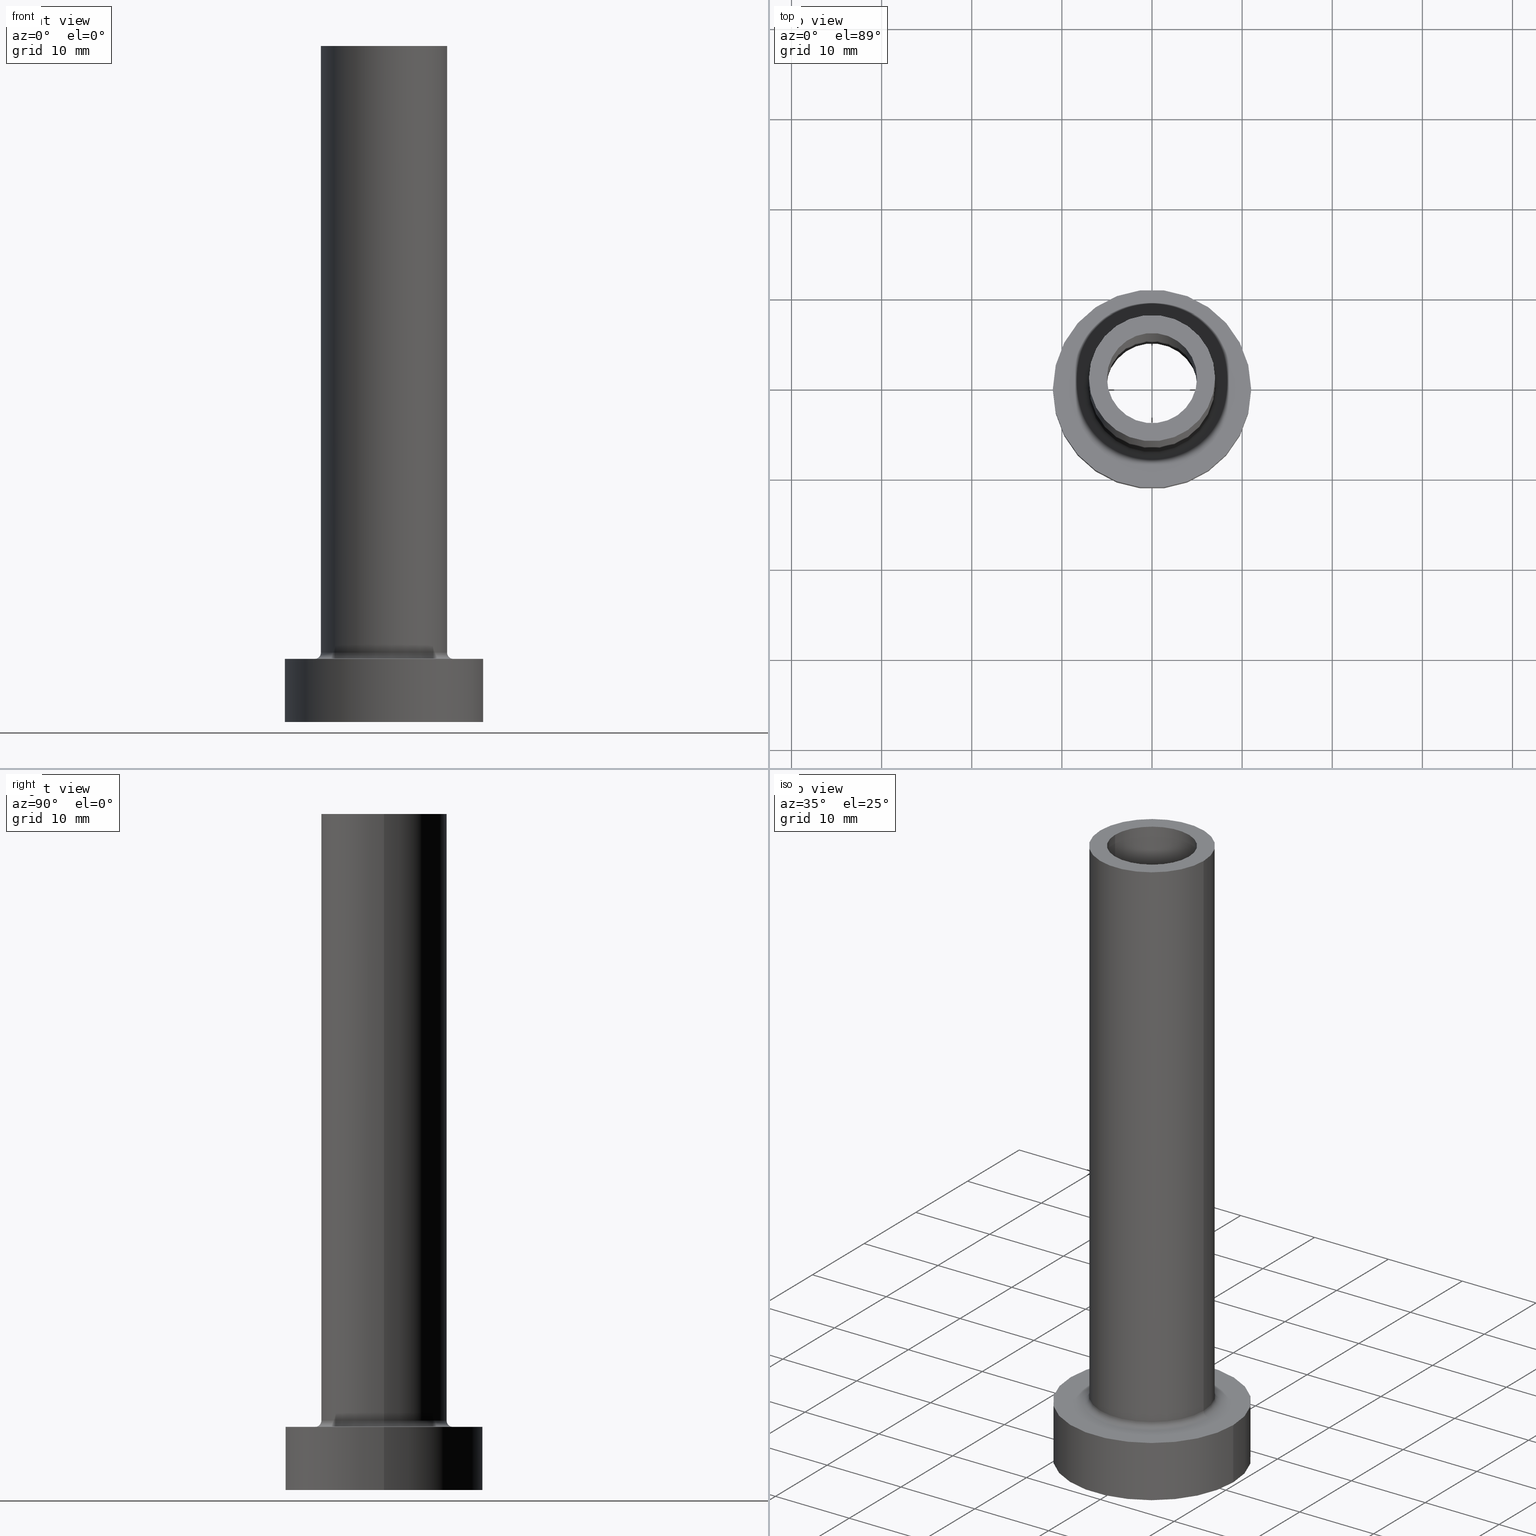
[diagram: canonical four-view strip — front | top / right | iso, engineering-drawing reading convention]
A machine part, canonical four-view strip (front | top / right | iso — engineering-drawing reading convention). The complete STEP part file that produces these views, byte-faithful:
ISO-10303-21;
HEADER;
FILE_DESCRIPTION (( 'STEP AP203' ),
    '1' );
FILE_NAME ('85dc.STEP',
    '2023-02-13T07:45:00',
    ( '' ),
    ( '' ),
    'SwSTEP 2.0',
    'SolidWorks 2019',
    '' );
FILE_SCHEMA (( 'CONFIG_CONTROL_DESIGN' ));
ENDSEC;

DATA;
#1 = PRODUCT_DEFINITION_SHAPE ( 'NONE', 'NONE',  #87 ) ;
#2 = CARTESIAN_POINT ( 'NONE',  ( 7.700000000000001066, 0.000000000000000000, 6.999999999999999112 ) ) ;
#3 = CARTESIAN_POINT ( 'NONE',  ( -7.000000000000000888, 0.000000000000000000, 7.699999999999998401 ) ) ;
#4 = DIRECTION ( 'NONE',  ( -0.000000000000000000, -0.000000000000000000, -1.000000000000000000 ) ) ;
#5 = VECTOR ( 'NONE', #144, 1000.000000000000000 ) ;
#6 =( LENGTH_UNIT ( ) NAMED_UNIT ( * ) SI_UNIT ( .MILLI., .METRE. ) );
#7 = CARTESIAN_POINT ( 'NONE',  ( 0.000000000000000000, 0.000000000000000000, 75.00000000000001421 ) ) ;
#8 = APPLICATION_PROTOCOL_DEFINITION ( 'international standard', 'config_control_design', 1994, #19 ) ;
#9 = CARTESIAN_POINT ( 'NONE',  ( -11.00000000000000000, 0.000000000000000000, 7.000000000000000000 ) ) ;
#10 = EDGE_CURVE ( 'NONE', #274, #378, #61, .T. ) ;
#11 = DATE_AND_TIME ( #194, #30 ) ;
#12 = VECTOR ( 'NONE', #119, 1000.000000000000000 ) ;
#13 = SHAPE_DEFINITION_REPRESENTATION ( #1, #37 ) ;
#14 = PRODUCT_DEFINITION_FORMATION_WITH_SPECIFIED_SOURCE ( 'LIBOVOLN�', '', #80, .NOT_KNOWN. ) ;
#15 = ADVANCED_FACE ( 'NONE', ( #437 ), #322, .F. ) ;
#16 = SECURITY_CLASSIFICATION_LEVEL ( 'unclassified' ) ;
#17 = CALENDAR_DATE ( 2023, 13, 2 ) ;
#18 = ORIENTED_EDGE ( 'NONE', *, *, #54, .F. ) ;
#19 = APPLICATION_CONTEXT ( 'configuration controlled 3d designs of mechanical parts and assemblies' ) ;
#20 = AXIS2_PLACEMENT_3D ( 'NONE', #115, #367, #183 ) ;
#21 = EDGE_LOOP ( 'NONE', ( #345, #140, #98, #282 ) ) ;
#22 = PLANE ( 'NONE',  #225 ) ;
#23 = EDGE_CURVE ( 'NONE', #390, #170, #29, .T. ) ;
#24 = VERTEX_POINT ( 'NONE', #81 ) ;
#25 = DIRECTION ( 'NONE',  ( 0.000000000000000000, 0.000000000000000000, -1.000000000000000000 ) ) ;
#26 = VERTEX_POINT ( 'NONE', #121 ) ;
#27 = ORIENTED_EDGE ( 'NONE', *, *, #160, .F. ) ;
#28 = FACE_BOUND ( 'NONE', #328, .T. ) ;
#29 = CIRCLE ( 'NONE', #290, 11.00000000000000000 ) ;
#30 = LOCAL_TIME ( 8, 45, 0.000000000000000000, #334 ) ;
#31 = CARTESIAN_POINT ( 'NONE',  ( 0.000000000000000000, 0.000000000000000000, 7.000000000000000000 ) ) ;
#32 = ORIENTED_EDGE ( 'NONE', *, *, #278, .F. ) ;
#33 = EDGE_CURVE ( 'NONE', #410, #381, #266, .T. ) ;
#34 = ORIENTED_EDGE ( 'NONE', *, *, #406, .F. ) ;
#35 = CARTESIAN_POINT ( 'NONE',  ( 0.000000000000000000, 0.000000000000000000, 7.000000000000000000 ) ) ;
#36 = DIRECTION ( 'NONE',  ( 1.000000000000000000, 0.000000000000000000, 0.000000000000000000 ) ) ;
#37 = ADVANCED_BREP_SHAPE_REPRESENTATION ( '85dc', ( #253, #257 ), #332 ) ;
#38 = DIRECTION ( 'NONE',  ( -0.000000000000000000, -0.000000000000000000, -1.000000000000000000 ) ) ;
#39 = CARTESIAN_POINT ( 'NONE',  ( -5.150000000000001243, 0.000000000000000000, 0.000000000000000000 ) ) ;
#40 = PLANE ( 'NONE',  #444 ) ;
#41 = DIRECTION ( 'NONE',  ( 0.000000000000000000, -1.000000000000000000, 0.000000000000000000 ) ) ;
#42 = AXIS2_PLACEMENT_3D ( 'NONE', #75, #293, #281 ) ;
#43 = CIRCLE ( 'NONE', #426, 7.000000000000000888 ) ;
#44 = CARTESIAN_POINT ( 'NONE',  ( 5.150000000000001243, 6.306931015608869596E-16, 44.56639969244290000 ) ) ;
#45 = ADVANCED_FACE ( 'NONE', ( #358, #384 ), #71, .T. ) ;
#46 = DIRECTION ( 'NONE',  ( 0.000000000000000000, 0.000000000000000000, 1.000000000000000000 ) ) ;
#47 = AXIS2_PLACEMENT_3D ( 'NONE', #352, #429, #114 ) ;
#48 = CC_DESIGN_PERSON_AND_ORGANIZATION_ASSIGNMENT ( #156, #263, ( #87 ) ) ;
#49 = LOCAL_TIME ( 8, 45, 0.000000000000000000, #229 ) ;
#50 = COORDINATED_UNIVERSAL_TIME_OFFSET ( 1, 0, .AHEAD. ) ;
#51 = CARTESIAN_POINT ( 'NONE',  ( -7.000000000000000888, 0.000000000000000000, 75.00000000000001421 ) ) ;
#52 = DATE_AND_TIME ( #120, #284 ) ;
#53 = PERSON_AND_ORGANIZATION ( #158, #389 ) ;
#54 = EDGE_CURVE ( 'NONE', #390, #24, #260, .T. ) ;
#55 = VECTOR ( 'NONE', #202, 1000.000000000000000 ) ;
#56 = PERSON_AND_ORGANIZATION_ROLE ( 'design_owner' ) ;
#57 = SECURITY_CLASSIFICATION ( '', '', #16 ) ;
#58 = EDGE_LOOP ( 'NONE', ( #270, #422, #65, #300 ) ) ;
#59 = ORIENTED_EDGE ( 'NONE', *, *, #118, .F. ) ;
#60 = APPROVAL ( #302, 'NEUR�EN�' ) ;
#61 = CIRCLE ( 'NONE', #148, 5.000000000000000000 ) ;
#62 = DIRECTION ( 'NONE',  ( -1.000000000000000000, 0.000000000000000000, 0.000000000000000000 ) ) ;
#63 = AXIS2_PLACEMENT_3D ( 'NONE', #86, #394, #255 ) ;
#64 = VERTEX_POINT ( 'NONE', #39 ) ;
#65 = ORIENTED_EDGE ( 'NONE', *, *, #348, .T. ) ;
#66 = DIRECTION ( 'NONE',  ( -1.000000000000000000, 0.000000000000000000, 0.000000000000000000 ) ) ;
#67 = ORIENTED_EDGE ( 'NONE', *, *, #374, .T. ) ;
#68 = ORIENTED_EDGE ( 'NONE', *, *, #203, .F. ) ;
#69 = LINE ( 'NONE', #347, #110 ) ;
#70 = EDGE_CURVE ( 'NONE', #443, #350, #245, .T. ) ;
#71 = PLANE ( 'NONE',  #83 ) ;
#72 = DIRECTION ( 'NONE',  ( 0.000000000000000000, 0.000000000000000000, 1.000000000000000000 ) ) ;
#73 = AXIS2_PLACEMENT_3D ( 'NONE', #392, #331, #296 ) ;
#74 = CIRCLE ( 'NONE', #63, 5.000000000000000000 ) ;
#75 = CARTESIAN_POINT ( 'NONE',  ( 0.000000000000000000, 0.000000000000000000, 44.56639969244290000 ) ) ;
#76 = ORIENTED_EDGE ( 'NONE', *, *, #406, .T. ) ;
#77 = CARTESIAN_POINT ( 'NONE',  ( 0.000000000000000000, 0.000000000000000000, 0.000000000000000000 ) ) ;
#78 = DIRECTION ( 'NONE',  ( 0.000000000000000000, 0.000000000000000000, -1.000000000000000000 ) ) ;
#79 = DIRECTION ( 'NONE',  ( -1.000000000000000000, 0.000000000000000000, 0.000000000000000000 ) ) ;
#80 = PRODUCT ( '85dc', '85dc', '', ( #409 ) ) ;
#81 = CARTESIAN_POINT ( 'NONE',  ( -11.00000000000000000, 0.000000000000000000, 0.000000000000000000 ) ) ;
#82 = DIRECTION ( 'NONE',  ( 1.000000000000000000, 0.000000000000000000, 0.000000000000000000 ) ) ;
#83 = AXIS2_PLACEMENT_3D ( 'NONE', #7, #217, #395 ) ;
#84 = AXIS2_PLACEMENT_3D ( 'NONE', #311, #419, #351 ) ;
#85 = LINE ( 'NONE', #44, #299 ) ;
#86 = CARTESIAN_POINT ( 'NONE',  ( 0.000000000000000000, 0.000000000000000000, 75.00000000000001421 ) ) ;
#87 = PRODUCT_DEFINITION ( 'NEZN�M�', '', #14, #385 ) ;
#88 = CARTESIAN_POINT ( 'NONE',  ( 0.000000000000000000, 0.000000000000000000, 7.000000000000000000 ) ) ;
#89 = AXIS2_PLACEMENT_3D ( 'NONE', #207, #320, #62 ) ;
#90 = APPROVAL_STATUS ( 'not_yet_approved' ) ;
#91 = APPROVAL_DATE_TIME ( #124, #60 ) ;
#92 = DATE_TIME_ROLE ( 'creation_date' ) ;
#93 = LOCAL_TIME ( 8, 45, 0.000000000000000000, #373 ) ;
#94 = PERSON_AND_ORGANIZATION ( #158, #389 ) ;
#95 = ADVANCED_FACE ( 'NONE', ( #152 ), #457, .F. ) ;
#96 = CYLINDRICAL_SURFACE ( 'NONE', #89, 11.00000000000000000 ) ;
#97 = ORIENTED_EDGE ( 'NONE', *, *, #230, .F. ) ;
#98 = ORIENTED_EDGE ( 'NONE', *, *, #219, .F. ) ;
#99 = TOROIDAL_SURFACE ( 'NONE', #415, 7.700000000000001066, 0.6999999999999999556 ) ;
#100 = ORIENTED_EDGE ( 'NONE', *, *, #450, .F. ) ;
#101 = EDGE_LOOP ( 'NONE', ( #161, #427, #375, #18 ) ) ;
#102 = ADVANCED_FACE ( 'NONE', ( #214, #179 ), #208, .F. ) ;
#103 = CARTESIAN_POINT ( 'NONE',  ( 5.000000000000000000, 6.123233995736765296E-16, 75.00000000000001421 ) ) ;
#104 = EDGE_LOOP ( 'NONE', ( #340, #136, #397, #205 ) ) ;
#105 = VERTEX_POINT ( 'NONE', #174 ) ;
#106 = CARTESIAN_POINT ( 'NONE',  ( 7.000000000000000888, 8.572527594031474176E-16, 75.00000000000001421 ) ) ;
#107 = DIRECTION ( 'NONE',  ( 1.000000000000000000, 0.000000000000000000, 0.000000000000000000 ) ) ;
#108 = ORIENTED_EDGE ( 'NONE', *, *, #431, .T. ) ;
#109 = FACE_OUTER_BOUND ( 'NONE', #171, .T. ) ;
#110 = VECTOR ( 'NONE', #25, 1000.000000000000000 ) ;
#111 = DIRECTION ( 'NONE',  ( 0.000000000000000000, 0.000000000000000000, -1.000000000000000000 ) ) ;
#112 = ORIENTED_EDGE ( 'NONE', *, *, #33, .F. ) ;
#113 = DIRECTION ( 'NONE',  ( -0.000000000000000000, -0.000000000000000000, -1.000000000000000000 ) ) ;
#114 = DIRECTION ( 'NONE',  ( 1.000000000000000000, 0.000000000000000000, -0.000000000000000000 ) ) ;
#115 = CARTESIAN_POINT ( 'NONE',  ( 0.000000000000000000, 0.000000000000000000, 7.699999999999998401 ) ) ;
#116 = CARTESIAN_POINT ( 'NONE',  ( 0.000000000000000000, 0.000000000000000000, 7.000000000000000000 ) ) ;
#117 = CIRCLE ( 'NONE', #84, 5.000000000000000000 ) ;
#118 = EDGE_CURVE ( 'NONE', #170, #247, #333, .T. ) ;
#119 = DIRECTION ( 'NONE',  ( 0.000000000000000000, 0.000000000000000000, -1.000000000000000000 ) ) ;
#120 = CALENDAR_DATE ( 2023, 13, 2 ) ;
#121 = CARTESIAN_POINT ( 'NONE',  ( 7.000000000000000888, 8.572527594031474176E-16, 7.699999999999998401 ) ) ;
#122 = DIRECTION ( 'NONE',  ( 1.000000000000000000, 0.000000000000000000, 0.000000000000000000 ) ) ;
#123 = ADVANCED_FACE ( 'NONE', ( #150 ), #99, .F. ) ;
#124 = DATE_AND_TIME ( #17, #93 ) ;
#125 = ORIENTED_EDGE ( 'NONE', *, *, #400, .F. ) ;
#126 = CIRCLE ( 'NONE', #388, 0.7000000000000000666 ) ;
#127 = ADVANCED_FACE ( 'NONE', ( #360 ), #314, .F. ) ;
#128 = CYLINDRICAL_SURFACE ( 'NONE', #306, 5.000000000000000000 ) ;
#129 = ORIENTED_EDGE ( 'NONE', *, *, #132, .T. ) ;
#130 = DIRECTION ( 'NONE',  ( 0.000000000000000000, 0.000000000000000000, 1.000000000000000000 ) ) ;
#131 = VERTEX_POINT ( 'NONE', #139 ) ;
#132 = EDGE_CURVE ( 'NONE', #26, #381, #126, .T. ) ;
#133 = EDGE_LOOP ( 'NONE', ( #97, #125, #346, #382 ) ) ;
#134 = DIRECTION ( 'NONE',  ( 1.000000000000000000, 0.000000000000000000, 0.000000000000000000 ) ) ;
#135 = AXIS2_PLACEMENT_3D ( 'NONE', #432, #330, #256 ) ;
#136 = ORIENTED_EDGE ( 'NONE', *, *, #10, .T. ) ;
#137 = DIRECTION ( 'NONE',  ( 0.000000000000000000, 0.000000000000000000, -1.000000000000000000 ) ) ;
#138 = DIRECTION ( 'NONE',  ( 0.000000000000000000, 0.000000000000000000, 1.000000000000000000 ) ) ;
#139 = CARTESIAN_POINT ( 'NONE',  ( 5.150000000000001243, 6.306931015608869596E-16, 0.000000000000000000 ) ) ;
#140 = ORIENTED_EDGE ( 'NONE', *, *, #329, .T. ) ;
#141 = AXIS2_PLACEMENT_3D ( 'NONE', #280, #213, #391 ) ;
#142 = CC_DESIGN_DATE_AND_TIME_ASSIGNMENT ( #11, #439, ( #57 ) ) ;
#143 = CC_DESIGN_APPROVAL ( #60, ( #57 ) ) ;
#144 = DIRECTION ( 'NONE',  ( -0.000000000000000000, -0.000000000000000000, -1.000000000000000000 ) ) ;
#145 = CARTESIAN_POINT ( 'NONE',  ( 7.000000000000000888, 8.572527594031474176E-16, 75.00000000000001421 ) ) ;
#146 = CARTESIAN_POINT ( 'NONE',  ( -5.000000000000000000, 0.000000000000000000, 75.00000000000001421 ) ) ;
#147 = DIRECTION ( 'NONE',  ( 1.000000000000000000, 0.000000000000000000, 0.000000000000000000 ) ) ;
#148 = AXIS2_PLACEMENT_3D ( 'NONE', #169, #224, #285 ) ;
#149 = APPROVAL_PERSON_ORGANIZATION ( #407, #60, #335 ) ;
#150 = FACE_OUTER_BOUND ( 'NONE', #21, .T. ) ;
#151 = CARTESIAN_POINT ( 'NONE',  ( 0.000000000000000000, 0.000000000000000000, 0.000000000000000000 ) ) ;
#152 = FACE_OUTER_BOUND ( 'NONE', #276, .T. ) ;
#153 = VERTEX_POINT ( 'NONE', #368 ) ;
#154 = APPLICATION_PROTOCOL_DEFINITION ( 'international standard', 'config_control_design', 1994, #215 ) ;
#155 = CIRCLE ( 'NONE', #354, 11.00000000000000000 ) ;
#156 = PERSON_AND_ORGANIZATION ( #158, #389 ) ;
#157 = VERTEX_POINT ( 'NONE', #435 ) ;
#158 = PERSON ( 'NEUR�EN�', 'NEUR�EN�', 'NEUR�EN�', ('NEUR�EN�'), ('NEUR�EN�'), ('NEUR�EN�') ) ;
#159 = PERSON_AND_ORGANIZATION_ROLE ( 'classification_officer' ) ;
#160 = EDGE_CURVE ( 'NONE', #378, #303, #279, .T. ) ;
#161 = ORIENTED_EDGE ( 'NONE', *, *, #264, .F. ) ;
#162 = AXIS2_PLACEMENT_3D ( 'NONE', #31, #387, #107 ) ;
#163 = CC_DESIGN_APPROVAL ( #294, ( #87 ) ) ;
#164 = ORIENTED_EDGE ( 'NONE', *, *, #264, .T. ) ;
#165 = DIRECTION ( 'NONE',  ( -1.000000000000000000, 0.000000000000000000, 0.000000000000000000 ) ) ;
#166 = ORIENTED_EDGE ( 'NONE', *, *, #23, .F. ) ;
#167 = ORIENTED_EDGE ( 'NONE', *, *, #338, .F. ) ;
#168 = DIRECTION ( 'NONE',  ( 1.000000000000000000, 0.000000000000000000, 0.000000000000000000 ) ) ;
#169 = CARTESIAN_POINT ( 'NONE',  ( 0.000000000000000000, 0.000000000000000000, 75.00000000000001421 ) ) ;
#170 = VERTEX_POINT ( 'NONE', #403 ) ;
#171 = EDGE_LOOP ( 'NONE', ( #201, #167 ) ) ;
#172 = CARTESIAN_POINT ( 'NONE',  ( 0.000000000000000000, 0.000000000000000000, 7.699999999999998401 ) ) ;
#173 = APPROVAL_PERSON_ORGANIZATION ( #233, #294, #441 ) ;
#174 = CARTESIAN_POINT ( 'NONE',  ( -5.150000000000001243, 0.000000000000000000, 30.00000000000001421 ) ) ;
#175 = EDGE_LOOP ( 'NONE', ( #307, #418 ) ) ;
#176 = DIRECTION ( 'NONE',  ( -1.000000000000000000, 0.000000000000000000, 0.000000000000000000 ) ) ;
#177 = CC_DESIGN_PERSON_AND_ORGANIZATION_ASSIGNMENT ( #94, #56, ( #80 ) ) ;
#178 = CYLINDRICAL_SURFACE ( 'NONE', #398, 11.00000000000000000 ) ;
#179 = FACE_OUTER_BOUND ( 'NONE', #269, .T. ) ;
#180 = DIRECTION ( 'NONE',  ( 1.000000000000000000, 0.000000000000000000, 0.000000000000000000 ) ) ;
#181 = VECTOR ( 'NONE', #187, 1000.000000000000000 ) ;
#182 = CIRCLE ( 'NONE', #135, 7.000000000000000888 ) ;
#183 = DIRECTION ( 'NONE',  ( 1.000000000000000000, 0.000000000000000000, 0.000000000000000000 ) ) ;
#184 = EDGE_CURVE ( 'NONE', #157, #303, #361, .T. ) ;
#185 = DIRECTION ( 'NONE',  ( 0.000000000000000000, 0.000000000000000000, 1.000000000000000000 ) ) ;
#186 =( NAMED_UNIT ( * ) PLANE_ANGLE_UNIT ( ) SI_UNIT ( $, .RADIAN. ) );
#187 = DIRECTION ( 'NONE',  ( -0.000000000000000000, -0.000000000000000000, -1.000000000000000000 ) ) ;
#188 = AXIS2_PLACEMENT_3D ( 'NONE', #318, #130, #273 ) ;
#189 = AXIS2_PLACEMENT_3D ( 'NONE', #456, #376, #165 ) ;
#190 = CALENDAR_DATE ( 2023, 13, 2 ) ;
#191 = CARTESIAN_POINT ( 'NONE',  ( 0.000000000000000000, 0.000000000000000000, 30.00000000000001421 ) ) ;
#192 = PERSON_AND_ORGANIZATION ( #158, #389 ) ;
#193 = ADVANCED_FACE ( 'NONE', ( #28, #109 ), #22, .F. ) ;
#194 = CALENDAR_DATE ( 2023, 13, 2 ) ;
#195 = AXIS2_PLACEMENT_3D ( 'NONE', #191, #72, #239 ) ;
#196 = AXIS2_PLACEMENT_3D ( 'NONE', #283, #288, #79 ) ;
#197 = APPROVAL_STATUS ( 'not_yet_approved' ) ;
#198 = EDGE_LOOP ( 'NONE', ( #379, #206 ) ) ;
#199 = EDGE_LOOP ( 'NONE', ( #355, #67 ) ) ;
#200 = ORIENTED_EDGE ( 'NONE', *, *, #348, .F. ) ;
#201 = ORIENTED_EDGE ( 'NONE', *, *, #408, .F. ) ;
#202 = DIRECTION ( 'NONE',  ( -0.000000000000000000, -0.000000000000000000, -1.000000000000000000 ) ) ;
#203 = EDGE_CURVE ( 'NONE', #105, #153, #336, .T. ) ;
#204 = ORIENTED_EDGE ( 'NONE', *, *, #23, .T. ) ;
#205 = ORIENTED_EDGE ( 'NONE', *, *, #184, .F. ) ;
#206 = ORIENTED_EDGE ( 'NONE', *, *, #33, .T. ) ;
#207 = CARTESIAN_POINT ( 'NONE',  ( 0.000000000000000000, 0.000000000000000000, 7.000000000000000000 ) ) ;
#208 = PLANE ( 'NONE',  #47 ) ;
#209 = DIRECTION ( 'NONE',  ( 0.000000000000000000, 0.000000000000000000, -1.000000000000000000 ) ) ;
#210 = CARTESIAN_POINT ( 'NONE',  ( 0.000000000000000000, 0.000000000000000000, 7.699999999999998401 ) ) ;
#211 = ADVANCED_FACE ( 'NONE', ( #449 ), #344, .F. ) ;
#212 = EDGE_LOOP ( 'NONE', ( #234, #251, #242, #241 ) ) ;
#213 = DIRECTION ( 'NONE',  ( 1.224646799147353207E-16, 1.000000000000000000, -0.000000000000000000 ) ) ;
#214 = FACE_BOUND ( 'NONE', #175, .T. ) ;
#215 = APPLICATION_CONTEXT ( 'configuration controlled 3d designs of mechanical parts and assemblies' ) ;
#216 = FACE_OUTER_BOUND ( 'NONE', #212, .T. ) ;
#217 = DIRECTION ( 'NONE',  ( 0.000000000000000000, 0.000000000000000000, 1.000000000000000000 ) ) ;
#218 = DIRECTION ( 'NONE',  ( 1.000000000000000000, 0.000000000000000000, 0.000000000000000000 ) ) ;
#219 = EDGE_CURVE ( 'NONE', #381, #410, #304, .T. ) ;
#220 = LOCAL_TIME ( 8, 45, 0.000000000000000000, #50 ) ;
#221 = CYLINDRICAL_SURFACE ( 'NONE', #196, 7.000000000000000888 ) ;
#222 = CARTESIAN_POINT ( 'NONE',  ( 0.000000000000000000, 0.000000000000000000, 0.000000000000000000 ) ) ;
#223 = CARTESIAN_POINT ( 'NONE',  ( 0.000000000000000000, 0.000000000000000000, 30.00000000000001421 ) ) ;
#224 = DIRECTION ( 'NONE',  ( 0.000000000000000000, 0.000000000000000000, 1.000000000000000000 ) ) ;
#225 = AXIS2_PLACEMENT_3D ( 'NONE', #380, #138, #423 ) ;
#226 = APPROVAL_PERSON_ORGANIZATION ( #53, #261, #265 ) ;
#227 = CC_DESIGN_PERSON_AND_ORGANIZATION_ASSIGNMENT ( #192, #159, ( #57 ) ) ;
#228 = PERSON_AND_ORGANIZATION ( #158, #389 ) ;
#229 = COORDINATED_UNIVERSAL_TIME_OFFSET ( 1, 0, .AHEAD. ) ;
#230 = EDGE_CURVE ( 'NONE', #353, #26, #308, .T. ) ;
#231 = CLOSED_SHELL ( 'NONE', ( #315, #15, #123, #342, #325, #417, #371, #193, #238, #45, #127, #95, #102, #211 ) ) ;
#232 = AXIS2_PLACEMENT_3D ( 'NONE', #35, #236, #134 ) ;
#233 = PERSON_AND_ORGANIZATION ( #158, #389 ) ;
#234 = ORIENTED_EDGE ( 'NONE', *, *, #374, .F. ) ;
#235 = EDGE_LOOP ( 'NONE', ( #34, #448 ) ) ;
#236 = DIRECTION ( 'NONE',  ( 0.000000000000000000, 0.000000000000000000, 1.000000000000000000 ) ) ;
#237 = AXIS2_PLACEMENT_3D ( 'NONE', #326, #113, #289 ) ;
#238 = ADVANCED_FACE ( 'NONE', ( #313 ), #412, .T. ) ;
#239 = DIRECTION ( 'NONE',  ( 1.000000000000000000, 0.000000000000000000, 0.000000000000000000 ) ) ;
#240 = CARTESIAN_POINT ( 'NONE',  ( 0.000000000000000000, 0.000000000000000000, 75.00000000000001421 ) ) ;
#241 = ORIENTED_EDGE ( 'NONE', *, *, #70, .F. ) ;
#242 = ORIENTED_EDGE ( 'NONE', *, *, #278, .T. ) ;
#243 = DIRECTION ( 'NONE',  ( 0.000000000000000000, 0.000000000000000000, 1.000000000000000000 ) ) ;
#244 = EDGE_CURVE ( 'NONE', #274, #157, #69, .T. ) ;
#245 = LINE ( 'NONE', #51, #181 ) ;
#246 = AXIS2_PLACEMENT_3D ( 'NONE', #240, #414, #66 ) ;
#247 = VERTEX_POINT ( 'NONE', #452 ) ;
#248 = FACE_OUTER_BOUND ( 'NONE', #460, .T. ) ;
#249 = CIRCLE ( 'NONE', #343, 7.000000000000000888 ) ;
#250 = CARTESIAN_POINT ( 'NONE',  ( -5.000000000000000000, 0.000000000000000000, 75.00000000000001421 ) ) ;
#251 = ORIENTED_EDGE ( 'NONE', *, *, #230, .T. ) ;
#252 = DIRECTION ( 'NONE',  ( 0.000000000000000000, 0.000000000000000000, 1.000000000000000000 ) ) ;
#253 = MANIFOLD_SOLID_BREP ( 'Odebrat vysunut�m4', #231 ) ;
#254 = DIRECTION ( 'NONE',  ( -0.000000000000000000, -0.000000000000000000, -1.000000000000000000 ) ) ;
#255 = DIRECTION ( 'NONE',  ( 1.000000000000000000, 0.000000000000000000, 0.000000000000000000 ) ) ;
#256 = DIRECTION ( 'NONE',  ( 1.000000000000000000, 0.000000000000000000, 0.000000000000000000 ) ) ;
#257 = AXIS2_PLACEMENT_3D ( 'NONE', #151, #341, #122 ) ;
#258 = CARTESIAN_POINT ( 'NONE',  ( 0.000000000000000000, 0.000000000000000000, 7.000000000000000000 ) ) ;
#259 = FACE_OUTER_BOUND ( 'NONE', #451, .T. ) ;
#260 = LINE ( 'NONE', #9, #5 ) ;
#261 = APPROVAL ( #90, 'NEUR�EN�' ) ;
#262 = APPROVAL_DATE_TIME ( #52, #261 ) ;
#263 = PERSON_AND_ORGANIZATION_ROLE ( 'creator' ) ;
#264 = EDGE_CURVE ( 'NONE', #170, #390, #267, .T. ) ;
#265 = APPROVAL_ROLE ( '' ) ;
#266 = CIRCLE ( 'NONE', #162, 7.700000000000001066 ) ;
#267 = CIRCLE ( 'NONE', #232, 11.00000000000000000 ) ;
#268 = APPROVAL_DATE_TIME ( #295, #294 ) ;
#269 = EDGE_LOOP ( 'NONE', ( #68, #310 ) ) ;
#270 = ORIENTED_EDGE ( 'NONE', *, *, #203, .T. ) ;
#271 = CARTESIAN_POINT ( 'NONE',  ( 0.000000000000000000, 0.000000000000000000, 7.000000000000000000 ) ) ;
#272 = EDGE_LOOP ( 'NONE', ( #204, #164 ) ) ;
#273 = DIRECTION ( 'NONE',  ( 1.000000000000000000, 0.000000000000000000, 0.000000000000000000 ) ) ;
#274 = VERTEX_POINT ( 'NONE', #103 ) ;
#275 = VECTOR ( 'NONE', #137, 1000.000000000000000 ) ;
#276 = EDGE_LOOP ( 'NONE', ( #100, #312, #446, #108 ) ) ;
#277 = DIRECTION ( 'NONE',  ( 1.000000000000000000, 0.000000000000000000, 0.000000000000000000 ) ) ;
#278 = EDGE_CURVE ( 'NONE', #26, #350, #43, .T. ) ;
#279 = LINE ( 'NONE', #250, #12 ) ;
#280 = CARTESIAN_POINT ( 'NONE',  ( -7.700000000000001066, 9.429780353434621002E-16, 7.699999999999998401 ) ) ;
#281 = DIRECTION ( 'NONE',  ( -1.000000000000000000, 0.000000000000000000, 0.000000000000000000 ) ) ;
#282 = ORIENTED_EDGE ( 'NONE', *, *, #132, .F. ) ;
#283 = CARTESIAN_POINT ( 'NONE',  ( 0.000000000000000000, 0.000000000000000000, 75.00000000000001421 ) ) ;
#284 = LOCAL_TIME ( 8, 45, 0.000000000000000000, #297 ) ;
#285 = DIRECTION ( 'NONE',  ( 1.000000000000000000, 0.000000000000000000, 0.000000000000000000 ) ) ;
#286 = DIRECTION ( 'NONE',  ( 0.000000000000000000, 0.000000000000000000, 1.000000000000000000 ) ) ;
#287 = EDGE_CURVE ( 'NONE', #303, #157, #117, .T. ) ;
#288 = DIRECTION ( 'NONE',  ( -0.000000000000000000, -0.000000000000000000, -1.000000000000000000 ) ) ;
#289 = DIRECTION ( 'NONE',  ( 1.000000000000000000, 0.000000000000000000, 0.000000000000000000 ) ) ;
#290 = AXIS2_PLACEMENT_3D ( 'NONE', #88, #357, #461 ) ;
#291 = AXIS2_PLACEMENT_3D ( 'NONE', #223, #46, #147 ) ;
#292 = FACE_OUTER_BOUND ( 'NONE', #272, .T. ) ;
#293 = DIRECTION ( 'NONE',  ( 0.000000000000000000, 0.000000000000000000, -1.000000000000000000 ) ) ;
#294 = APPROVAL ( #197, 'NEUR�EN�' ) ;
#295 = DATE_AND_TIME ( #190, #220 ) ;
#296 = DIRECTION ( 'NONE',  ( 1.000000000000000000, 0.000000000000000000, 0.000000000000000000 ) ) ;
#297 = COORDINATED_UNIVERSAL_TIME_OFFSET ( 1, 0, .AHEAD. ) ;
#298 = VECTOR ( 'NONE', #254, 1000.000000000000000 ) ;
#299 = VECTOR ( 'NONE', #364, 1000.000000000000000 ) ;
#300 = ORIENTED_EDGE ( 'NONE', *, *, #301, .F. ) ;
#301 = EDGE_CURVE ( 'NONE', #105, #64, #420, .T. ) ;
#302 = APPROVAL_STATUS ( 'not_yet_approved' ) ;
#303 = VERTEX_POINT ( 'NONE', #386 ) ;
#304 = CIRCLE ( 'NONE', #453, 7.700000000000001066 ) ;
#305 = ORIENTED_EDGE ( 'NONE', *, *, #408, .T. ) ;
#306 = AXIS2_PLACEMENT_3D ( 'NONE', #383, #209, #176 ) ;
#307 = ORIENTED_EDGE ( 'NONE', *, *, #287, .T. ) ;
#308 = LINE ( 'NONE', #106, #55 ) ;
#309 = CC_DESIGN_PERSON_AND_ORGANIZATION_ASSIGNMENT ( #404, #369, ( #14 ) ) ;
#310 = ORIENTED_EDGE ( 'NONE', *, *, #458, .F. ) ;
#311 = CARTESIAN_POINT ( 'NONE',  ( 0.000000000000000000, 0.000000000000000000, 30.00000000000001421 ) ) ;
#312 = ORIENTED_EDGE ( 'NONE', *, *, #458, .T. ) ;
#313 = FACE_OUTER_BOUND ( 'NONE', #133, .T. ) ;
#314 = TOROIDAL_SURFACE ( 'NONE', #73, 7.700000000000001066, 0.6999999999999999556 ) ;
#315 = ADVANCED_FACE ( 'NONE', ( #248 ), #128, .F. ) ;
#316 = CIRCLE ( 'NONE', #141, 0.7000000000000000666 ) ;
#317 = ORIENTED_EDGE ( 'NONE', *, *, #329, .F. ) ;
#318 = CARTESIAN_POINT ( 'NONE',  ( 0.000000000000000000, 0.000000000000000000, 30.00000000000001421 ) ) ;
#319 = DIRECTION ( 'NONE',  ( -1.000000000000000000, 0.000000000000000000, 0.000000000000000000 ) ) ;
#320 = DIRECTION ( 'NONE',  ( -0.000000000000000000, -0.000000000000000000, -1.000000000000000000 ) ) ;
#321 = CARTESIAN_POINT ( 'NONE',  ( 11.00000000000000000, 1.347111479062088405E-15, 7.000000000000000000 ) ) ;
#322 = CYLINDRICAL_SURFACE ( 'NONE', #377, 5.150000000000001243 ) ;
#323 = CIRCLE ( 'NONE', #454, 5.150000000000001243 ) ;
#324 = FACE_BOUND ( 'NONE', #198, .T. ) ;
#325 = ADVANCED_FACE ( 'NONE', ( #356 ), #96, .T. ) ;
#326 = CARTESIAN_POINT ( 'NONE',  ( 0.000000000000000000, 0.000000000000000000, 0.000000000000000000 ) ) ;
#327 = DIRECTION ( 'NONE',  ( -1.000000000000000000, 0.000000000000000000, 0.000000000000000000 ) ) ;
#328 = EDGE_LOOP ( 'NONE', ( #413, #200 ) ) ;
#329 = EDGE_CURVE ( 'NONE', #350, #410, #316, .T. ) ;
#330 = DIRECTION ( 'NONE',  ( 0.000000000000000000, 0.000000000000000000, 1.000000000000000000 ) ) ;
#331 = DIRECTION ( 'NONE',  ( 0.000000000000000000, 0.000000000000000000, 1.000000000000000000 ) ) ;
#332 =( GEOMETRIC_REPRESENTATION_CONTEXT ( 3 ) GLOBAL_UNCERTAINTY_ASSIGNED_CONTEXT ( ( #455 ) ) GLOBAL_UNIT_ASSIGNED_CONTEXT ( ( #6, #186, #402 ) ) REPRESENTATION_CONTEXT ( 'NONE', 'WORKASPACE' ) );
#333 = LINE ( 'NONE', #321, #298 ) ;
#334 = COORDINATED_UNIVERSAL_TIME_OFFSET ( 1, 0, .AHEAD. ) ;
#335 = APPROVAL_ROLE ( '' ) ;
#336 = CIRCLE ( 'NONE', #188, 5.150000000000001243 ) ;
#337 = CIRCLE ( 'NONE', #237, 5.150000000000001243 ) ;
#338 = EDGE_CURVE ( 'NONE', #247, #24, #372, .T. ) ;
#339 = PERSON_AND_ORGANIZATION_ROLE ( 'creator' ) ;
#340 = ORIENTED_EDGE ( 'NONE', *, *, #244, .F. ) ;
#341 = DIRECTION ( 'NONE',  ( 0.000000000000000000, 0.000000000000000000, 1.000000000000000000 ) ) ;
#342 = ADVANCED_FACE ( 'NONE', ( #216 ), #221, .T. ) ;
#343 = AXIS2_PLACEMENT_3D ( 'NONE', #401, #252, #180 ) ;
#344 = CYLINDRICAL_SURFACE ( 'NONE', #246, 5.000000000000000000 ) ;
#345 = ORIENTED_EDGE ( 'NONE', *, *, #365, .F. ) ;
#346 = ORIENTED_EDGE ( 'NONE', *, *, #70, .T. ) ;
#347 = CARTESIAN_POINT ( 'NONE',  ( 5.000000000000000000, 6.123233995736765296E-16, 75.00000000000001421 ) ) ;
#348 = EDGE_CURVE ( 'NONE', #131, #64, #337, .T. ) ;
#349 = EDGE_LOOP ( 'NONE', ( #317, #32, #129, #112 ) ) ;
#350 = VERTEX_POINT ( 'NONE', #3 ) ;
#351 = DIRECTION ( 'NONE',  ( 1.000000000000000000, 0.000000000000000000, 0.000000000000000000 ) ) ;
#352 = CARTESIAN_POINT ( 'NONE',  ( 0.000000000000000000, 0.000000000000000000, 30.00000000000001421 ) ) ;
#353 = VERTEX_POINT ( 'NONE', #145 ) ;
#354 = AXIS2_PLACEMENT_3D ( 'NONE', #399, #396, #82 ) ;
#355 = ORIENTED_EDGE ( 'NONE', *, *, #400, .T. ) ;
#356 = FACE_OUTER_BOUND ( 'NONE', #101, .T. ) ;
#357 = DIRECTION ( 'NONE',  ( 0.000000000000000000, 0.000000000000000000, 1.000000000000000000 ) ) ;
#358 = FACE_BOUND ( 'NONE', #235, .T. ) ;
#359 = DIRECTION ( 'NONE',  ( 1.000000000000000000, 0.000000000000000000, 0.000000000000000000 ) ) ;
#360 = FACE_OUTER_BOUND ( 'NONE', #349, .T. ) ;
#361 = CIRCLE ( 'NONE', #195, 5.000000000000000000 ) ;
#362 = CIRCLE ( 'NONE', #20, 7.000000000000000888 ) ;
#363 = CARTESIAN_POINT ( 'NONE',  ( -7.000000000000000888, 0.000000000000000000, 75.00000000000001421 ) ) ;
#364 = DIRECTION ( 'NONE',  ( 0.000000000000000000, 0.000000000000000000, -1.000000000000000000 ) ) ;
#365 = EDGE_CURVE ( 'NONE', #350, #26, #362, .T. ) ;
#366 = DIRECTION ( 'NONE',  ( -0.000000000000000000, -0.000000000000000000, -1.000000000000000000 ) ) ;
#367 = DIRECTION ( 'NONE',  ( 0.000000000000000000, 0.000000000000000000, 1.000000000000000000 ) ) ;
#368 = CARTESIAN_POINT ( 'NONE',  ( 5.150000000000001243, 6.306931015608869596E-16, 30.00000000000001421 ) ) ;
#369 = PERSON_AND_ORGANIZATION_ROLE ( 'design_supplier' ) ;
#370 = DATE_AND_TIME ( #436, #49 ) ;
#371 = ADVANCED_FACE ( 'NONE', ( #324, #292 ), #40, .T. ) ;
#372 = CIRCLE ( 'NONE', #440, 11.00000000000000000 ) ;
#373 = COORDINATED_UNIVERSAL_TIME_OFFSET ( 1, 0, .AHEAD. ) ;
#374 = EDGE_CURVE ( 'NONE', #353, #443, #249, .T. ) ;
#375 = ORIENTED_EDGE ( 'NONE', *, *, #338, .T. ) ;
#376 = DIRECTION ( 'NONE',  ( -0.000000000000000000, -0.000000000000000000, -1.000000000000000000 ) ) ;
#377 = AXIS2_PLACEMENT_3D ( 'NONE', #459, #78, #319 ) ;
#378 = VERTEX_POINT ( 'NONE', #146 ) ;
#379 = ORIENTED_EDGE ( 'NONE', *, *, #219, .T. ) ;
#380 = CARTESIAN_POINT ( 'NONE',  ( 0.000000000000000000, 0.000000000000000000, 0.000000000000000000 ) ) ;
#381 = VERTEX_POINT ( 'NONE', #2 ) ;
#382 = ORIENTED_EDGE ( 'NONE', *, *, #365, .T. ) ;
#383 = CARTESIAN_POINT ( 'NONE',  ( 0.000000000000000000, 0.000000000000000000, 75.00000000000001421 ) ) ;
#384 = FACE_OUTER_BOUND ( 'NONE', #199, .T. ) ;
#385 = DESIGN_CONTEXT ( 'detailed design', #215, 'design' ) ;
#386 = CARTESIAN_POINT ( 'NONE',  ( -5.000000000000000000, 0.000000000000000000, 30.00000000000001421 ) ) ;
#387 = DIRECTION ( 'NONE',  ( -0.000000000000000000, -0.000000000000000000, -1.000000000000000000 ) ) ;
#388 = AXIS2_PLACEMENT_3D ( 'NONE', #425, #41, #111 ) ;
#389 = ORGANIZATION ( 'NEUR�EN�', 'NEUR�EN�', '' ) ;
#390 = VERTEX_POINT ( 'NONE', #434 ) ;
#391 = DIRECTION ( 'NONE',  ( -1.000000000000000000, 1.224646799147351975E-16, 0.000000000000000000 ) ) ;
#392 = CARTESIAN_POINT ( 'NONE',  ( 0.000000000000000000, 0.000000000000000000, 7.699999999999998401 ) ) ;
#393 = CC_DESIGN_PERSON_AND_ORGANIZATION_ASSIGNMENT ( #228, #339, ( #14 ) ) ;
#394 = DIRECTION ( 'NONE',  ( 0.000000000000000000, 0.000000000000000000, 1.000000000000000000 ) ) ;
#395 = DIRECTION ( 'NONE',  ( 1.000000000000000000, 0.000000000000000000, -0.000000000000000000 ) ) ;
#396 = DIRECTION ( 'NONE',  ( 0.000000000000000000, 0.000000000000000000, 1.000000000000000000 ) ) ;
#397 = ORIENTED_EDGE ( 'NONE', *, *, #160, .T. ) ;
#398 = AXIS2_PLACEMENT_3D ( 'NONE', #258, #4, #327 ) ;
#399 = CARTESIAN_POINT ( 'NONE',  ( 0.000000000000000000, 0.000000000000000000, 0.000000000000000000 ) ) ;
#400 = EDGE_CURVE ( 'NONE', #443, #353, #182, .T. ) ;
#401 = CARTESIAN_POINT ( 'NONE',  ( 0.000000000000000000, 0.000000000000000000, 75.00000000000001421 ) ) ;
#402 =( NAMED_UNIT ( * ) SI_UNIT ( $, .STERADIAN. ) SOLID_ANGLE_UNIT ( ) );
#403 = CARTESIAN_POINT ( 'NONE',  ( 11.00000000000000000, 1.347111479062088405E-15, 7.000000000000000000 ) ) ;
#404 = PERSON_AND_ORGANIZATION ( #158, #389 ) ;
#405 = CC_DESIGN_SECURITY_CLASSIFICATION ( #57, ( #14 ) ) ;
#406 = EDGE_CURVE ( 'NONE', #378, #274, #74, .T. ) ;
#407 = PERSON_AND_ORGANIZATION ( #158, #389 ) ;
#408 = EDGE_CURVE ( 'NONE', #24, #247, #155, .T. ) ;
#409 = MECHANICAL_CONTEXT ( 'NONE', #19, 'mechanical' ) ;
#410 = VERTEX_POINT ( 'NONE', #428 ) ;
#411 = ORIENTED_EDGE ( 'NONE', *, *, #287, .F. ) ;
#412 = CYLINDRICAL_SURFACE ( 'NONE', #189, 7.000000000000000888 ) ;
#413 = ORIENTED_EDGE ( 'NONE', *, *, #431, .F. ) ;
#414 = DIRECTION ( 'NONE',  ( 0.000000000000000000, 0.000000000000000000, -1.000000000000000000 ) ) ;
#415 = AXIS2_PLACEMENT_3D ( 'NONE', #210, #421, #36 ) ;
#416 = CIRCLE ( 'NONE', #291, 5.150000000000001243 ) ;
#417 = ADVANCED_FACE ( 'NONE', ( #259 ), #178, .T. ) ;
#418 = ORIENTED_EDGE ( 'NONE', *, *, #184, .T. ) ;
#419 = DIRECTION ( 'NONE',  ( 0.000000000000000000, 0.000000000000000000, 1.000000000000000000 ) ) ;
#420 = LINE ( 'NONE', #447, #275 ) ;
#421 = DIRECTION ( 'NONE',  ( 0.000000000000000000, 0.000000000000000000, 1.000000000000000000 ) ) ;
#422 = ORIENTED_EDGE ( 'NONE', *, *, #450, .T. ) ;
#423 = DIRECTION ( 'NONE',  ( 1.000000000000000000, 0.000000000000000000, -0.000000000000000000 ) ) ;
#424 = CC_DESIGN_DATE_AND_TIME_ASSIGNMENT ( #370, #92, ( #87 ) ) ;
#425 = CARTESIAN_POINT ( 'NONE',  ( 7.700000000000001066, 0.000000000000000000, 7.699999999999998401 ) ) ;
#426 = AXIS2_PLACEMENT_3D ( 'NONE', #172, #243, #277 ) ;
#427 = ORIENTED_EDGE ( 'NONE', *, *, #118, .T. ) ;
#428 = CARTESIAN_POINT ( 'NONE',  ( -7.700000000000001066, 9.429780353434621002E-16, 6.999999999999999112 ) ) ;
#429 = DIRECTION ( 'NONE',  ( 0.000000000000000000, 0.000000000000000000, 1.000000000000000000 ) ) ;
#430 = DIRECTION ( 'NONE',  ( 1.000000000000000000, 0.000000000000000000, -0.000000000000000000 ) ) ;
#431 = EDGE_CURVE ( 'NONE', #64, #131, #323, .T. ) ;
#432 = CARTESIAN_POINT ( 'NONE',  ( 0.000000000000000000, 0.000000000000000000, 75.00000000000001421 ) ) ;
#433 = CC_DESIGN_APPROVAL ( #261, ( #14 ) ) ;
#434 = CARTESIAN_POINT ( 'NONE',  ( -11.00000000000000000, 0.000000000000000000, 7.000000000000000000 ) ) ;
#435 = CARTESIAN_POINT ( 'NONE',  ( 5.000000000000000000, 6.123233995736765296E-16, 30.00000000000001421 ) ) ;
#436 = CALENDAR_DATE ( 2023, 13, 2 ) ;
#437 = FACE_OUTER_BOUND ( 'NONE', #58, .T. ) ;
#438 = PRODUCT_RELATED_PRODUCT_CATEGORY ( 'detail', '', ( #80 ) ) ;
#439 = DATE_TIME_ROLE ( 'classification_date' ) ;
#440 = AXIS2_PLACEMENT_3D ( 'NONE', #77, #185, #359 ) ;
#441 = APPROVAL_ROLE ( '' ) ;
#442 = ORIENTED_EDGE ( 'NONE', *, *, #54, .T. ) ;
#443 = VERTEX_POINT ( 'NONE', #363 ) ;
#444 = AXIS2_PLACEMENT_3D ( 'NONE', #116, #286, #430 ) ;
#445 = ORIENTED_EDGE ( 'NONE', *, *, #244, .T. ) ;
#446 = ORIENTED_EDGE ( 'NONE', *, *, #301, .T. ) ;
#447 = CARTESIAN_POINT ( 'NONE',  ( -5.150000000000001243, 0.000000000000000000, 44.56639969244290000 ) ) ;
#448 = ORIENTED_EDGE ( 'NONE', *, *, #10, .F. ) ;
#449 = FACE_OUTER_BOUND ( 'NONE', #104, .T. ) ;
#450 = EDGE_CURVE ( 'NONE', #153, #131, #85, .T. ) ;
#451 = EDGE_LOOP ( 'NONE', ( #59, #166, #442, #305 ) ) ;
#452 = CARTESIAN_POINT ( 'NONE',  ( 11.00000000000000000, 1.347111479062088405E-15, 0.000000000000000000 ) ) ;
#453 = AXIS2_PLACEMENT_3D ( 'NONE', #271, #38, #168 ) ;
#454 = AXIS2_PLACEMENT_3D ( 'NONE', #222, #366, #218 ) ;
#455 = UNCERTAINTY_MEASURE_WITH_UNIT (LENGTH_MEASURE( 1.000000000000000082E-05 ), #6, 'distance_accuracy_value', 'NONE');
#456 = CARTESIAN_POINT ( 'NONE',  ( 0.000000000000000000, 0.000000000000000000, 75.00000000000001421 ) ) ;
#457 = CYLINDRICAL_SURFACE ( 'NONE', #42, 5.150000000000001243 ) ;
#458 = EDGE_CURVE ( 'NONE', #153, #105, #416, .T. ) ;
#459 = CARTESIAN_POINT ( 'NONE',  ( 0.000000000000000000, 0.000000000000000000, 44.56639969244290000 ) ) ;
#460 = EDGE_LOOP ( 'NONE', ( #76, #445, #411, #27 ) ) ;
#461 = DIRECTION ( 'NONE',  ( 1.000000000000000000, 0.000000000000000000, 0.000000000000000000 ) ) ;
ENDSEC;
END-ISO-10303-21;
